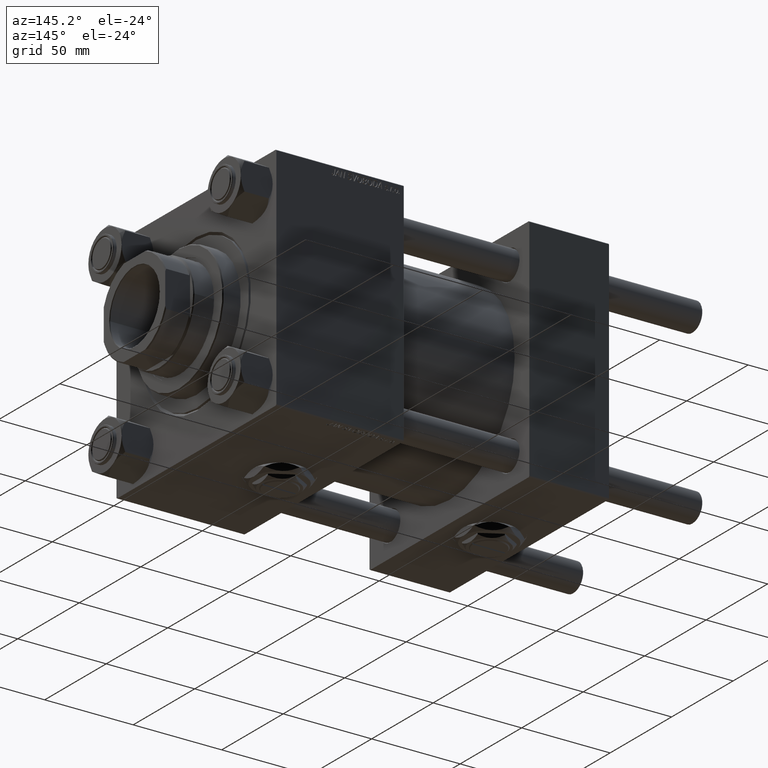
[diagram: clean part render]
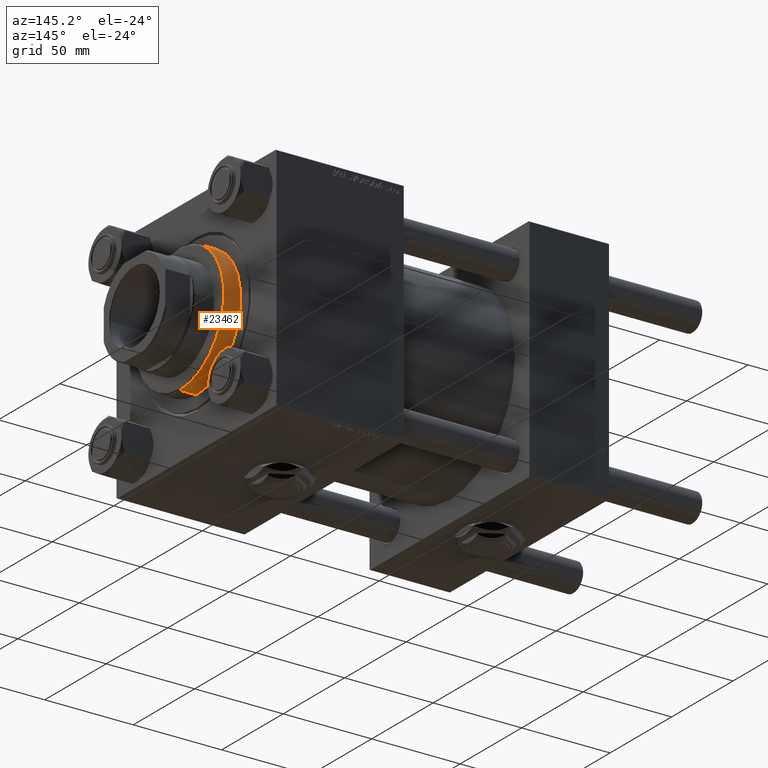
[diagram: same view with one face highlighted and labeled with its STEP entity id]
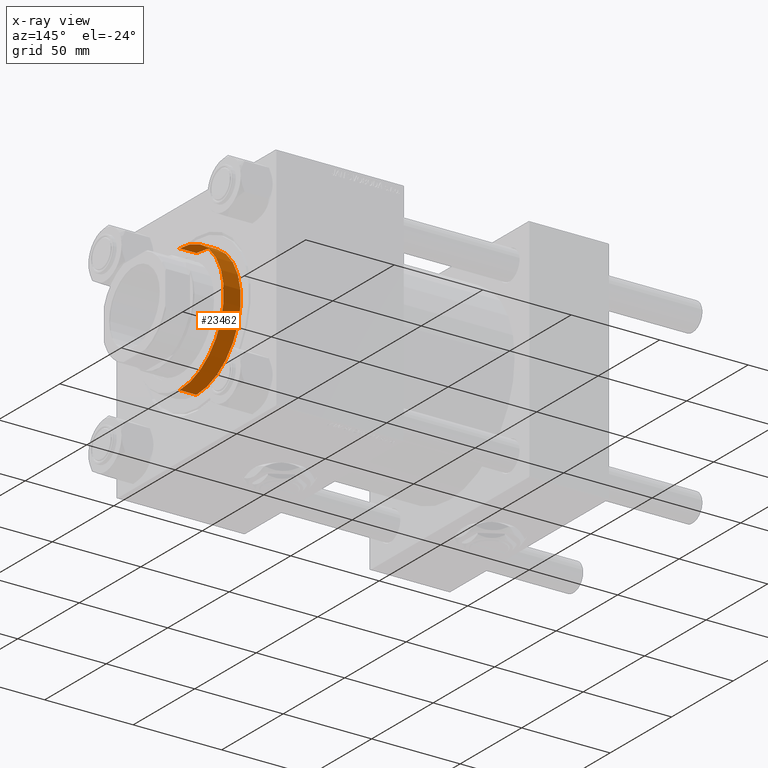
[diagram: x-ray of the same camera — body ghosted, the highlighted face saturated]
A machine part, auxiliary view. The second image highlights one B-rep face of the part: STEP entity #23462.
The next image is the same camera in x-ray: the body ghosted, the highlighted face saturated — about 0% of this face is hidden behind the body in this view.
In plain terms, the highlighted cylindrical surface (partial cylindrical patch) has radius 36 mm, axis along (-1, -0, 0).
Its self-contained STEP definition (entity closure, byte-faithful):
#1623 = EDGE_CURVE ( 'NONE', #45421, #14877, #26199, .T. ) ;
#4978 = CARTESIAN_POINT ( 'NONE',  ( 0.000000000000000000, 0.000000000000000000, 38.19999999999998863 ) ) ;
#6500 = CIRCLE ( 'NONE', #37789, 36.00000000000000000 ) ;
#8189 = DIRECTION ( 'NONE',  ( 1.000000000000000000, 0.000000000000000000, 0.000000000000000000 ) ) ;
#10311 = ORIENTED_EDGE ( 'NONE', *, *, #1623, .T. ) ;
#11732 = DIRECTION ( 'NONE',  ( -0.000000000000000000, -0.000000000000000000, -1.000000000000000000 ) ) ;
#14171 = EDGE_CURVE ( 'NONE', #26586, #45421, #15553, .T. ) ;
#14520 = CARTESIAN_POINT ( 'NONE',  ( -36.00000000000000000, 0.000000000000000000, 28.69999999999999929 ) ) ;
#14877 = VERTEX_POINT ( 'NONE', #14520 ) ;
#15553 = LINE ( 'NONE', #36963, #18069 ) ;
#18069 = VECTOR ( 'NONE', #44653, 1000.000000000000000 ) ;
#18743 = VERTEX_POINT ( 'NONE', #44929 ) ;
#21018 = CARTESIAN_POINT ( 'NONE',  ( -36.00000000000000000, 0.000000000000000000, 38.69999999999999574 ) ) ;
#21154 = CARTESIAN_POINT ( 'NONE',  ( 0.000000000000000000, 0.000000000000000000, 28.69999999999999929 ) ) ;
#22773 = CARTESIAN_POINT ( 'NONE',  ( 36.00000000000000000, 4.408728476930470856E-15, 28.69999999999999929 ) ) ;
#23462 = ADVANCED_FACE ( 'NONE', ( #31866 ), #48010, .T. ) ;
#25778 = EDGE_LOOP ( 'NONE', ( #42087, #33510, #10311, #28865 ) ) ;
#26199 = CIRCLE ( 'NONE', #39732, 36.00000000000000000 ) ;
#26586 = VERTEX_POINT ( 'NONE', #35656 ) ;
#28865 = ORIENTED_EDGE ( 'NONE', *, *, #42284, .F. ) ;
#31866 = FACE_OUTER_BOUND ( 'NONE', #25778, .T. ) ;
#32122 = CARTESIAN_POINT ( 'NONE',  ( 0.000000000000000000, 0.000000000000000000, 38.69999999999999574 ) ) ;
#33313 = DIRECTION ( 'NONE',  ( 0.000000000000000000, 0.000000000000000000, -1.000000000000000000 ) ) ;
#33510 = ORIENTED_EDGE ( 'NONE', *, *, #14171, .T. ) ;
#35656 = CARTESIAN_POINT ( 'NONE',  ( 36.00000000000000000, 4.408728476930470856E-15, 38.19999999999998863 ) ) ;
#36963 = CARTESIAN_POINT ( 'NONE',  ( 36.00000000000000000, 4.408728476930470856E-15, 38.69999999999999574 ) ) ;
#37789 = AXIS2_PLACEMENT_3D ( 'NONE', #4978, #33313, #8189 ) ;
#38901 = AXIS2_PLACEMENT_3D ( 'NONE', #32122, #11732, #48266 ) ;
#39539 = VECTOR ( 'NONE', #45608, 1000.000000000000000 ) ;
#39732 = AXIS2_PLACEMENT_3D ( 'NONE', #21154, #45489, #40732 ) ;
#40732 = DIRECTION ( 'NONE',  ( 1.000000000000000000, 0.000000000000000000, 0.000000000000000000 ) ) ;
#41042 = EDGE_CURVE ( 'NONE', #18743, #26586, #6500, .T. ) ;
#41115 = LINE ( 'NONE', #21018, #39539 ) ;
#42087 = ORIENTED_EDGE ( 'NONE', *, *, #41042, .T. ) ;
#42284 = EDGE_CURVE ( 'NONE', #18743, #14877, #41115, .T. ) ;
#44653 = DIRECTION ( 'NONE',  ( -0.000000000000000000, -0.000000000000000000, -1.000000000000000000 ) ) ;
#44929 = CARTESIAN_POINT ( 'NONE',  ( -36.00000000000000000, 0.000000000000000000, 38.19999999999998863 ) ) ;
#45421 = VERTEX_POINT ( 'NONE', #22773 ) ;
#45489 = DIRECTION ( 'NONE',  ( 0.000000000000000000, 0.000000000000000000, 1.000000000000000000 ) ) ;
#45608 = DIRECTION ( 'NONE',  ( -0.000000000000000000, -0.000000000000000000, -1.000000000000000000 ) ) ;
#48010 = CYLINDRICAL_SURFACE ( 'NONE', #38901, 36.00000000000000000 ) ;
#48266 = DIRECTION ( 'NONE',  ( -1.000000000000000000, 0.000000000000000000, 0.000000000000000000 ) ) ;